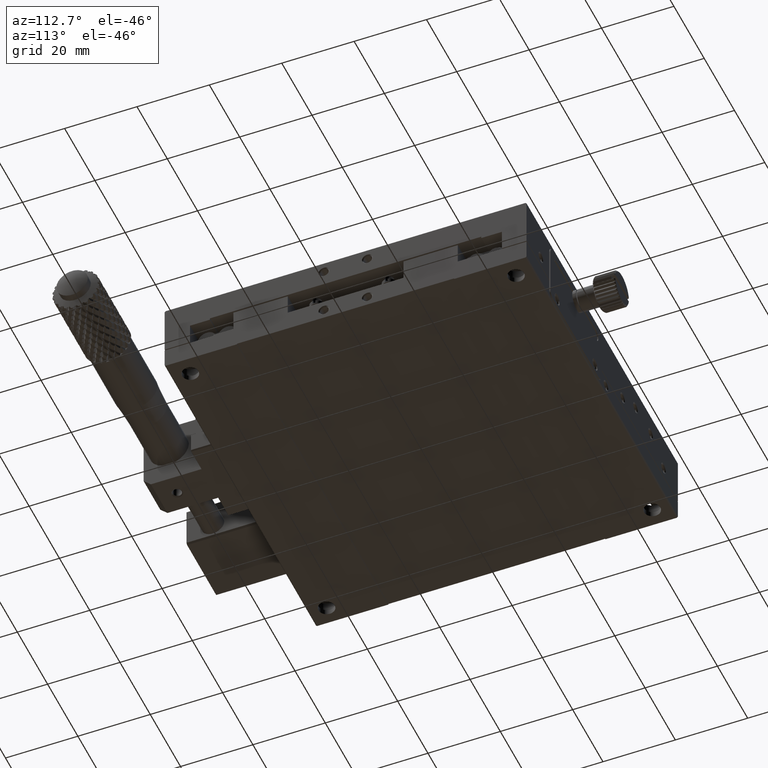
[diagram: clean part render]
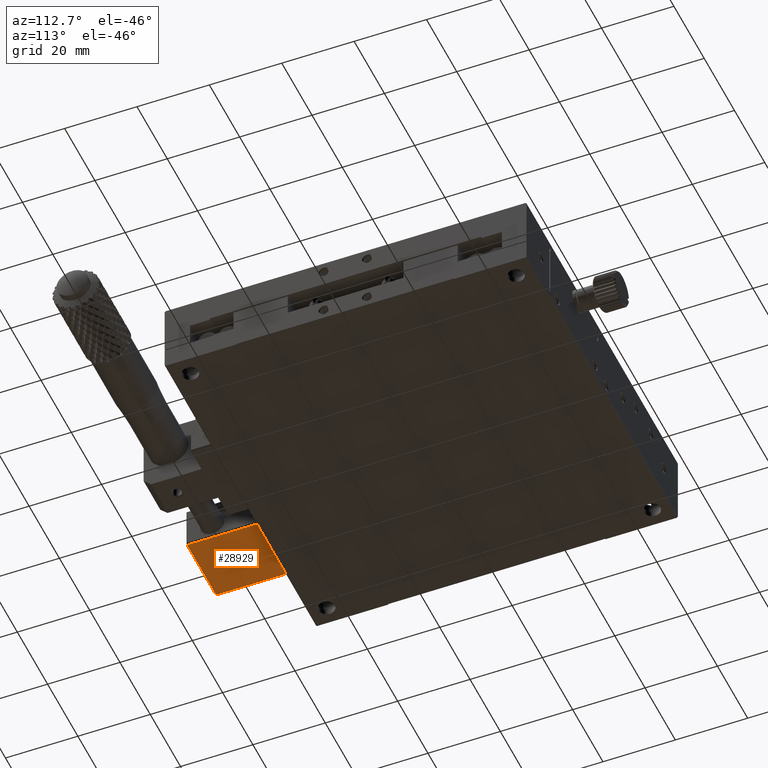
[diagram: same view with one face highlighted and labeled with its STEP entity id]
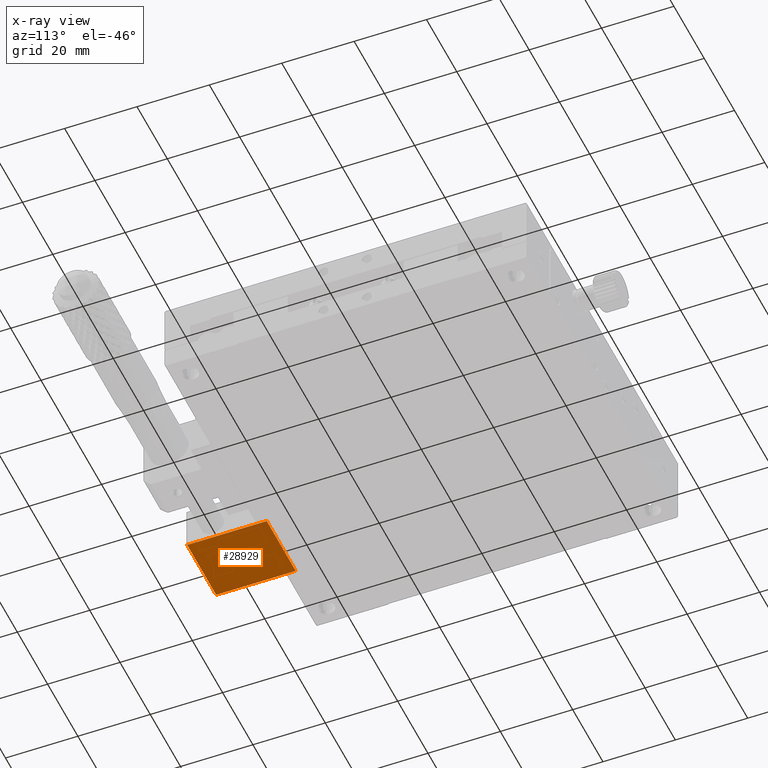
[diagram: x-ray of the same camera — body ghosted, the highlighted face saturated]
A machine part, auxiliary view. The second image highlights one B-rep face of the part: STEP entity #28929.
The next image is the same camera in x-ray: the body ghosted, the highlighted face saturated — about 0% of this face is hidden behind the body in this view.
In plain terms, the highlighted planar face has unit normal (0, 0, 1).
Its self-contained STEP definition (entity closure, byte-faithful):
#3992 = DIRECTION ( 'NONE',  ( 0.000000000000000000, 0.000000000000000000, 1.000000000000000000 ) ) ;
#4460 = VECTOR ( 'NONE', #27889, 1000.000000000000000 ) ;
#5119 = VECTOR ( 'NONE', #30119, 1000.000000000000000 ) ;
#6159 = EDGE_CURVE ( 'NONE', #68955, #8788, #74245, .T. ) ;
#7357 = VECTOR ( 'NONE', #65576, 1000.000000000000000 ) ;
#8025 = DIRECTION ( 'NONE',  ( -1.000000000000000000, 0.000000000000000000, 0.000000000000000000 ) ) ;
#8788 = VERTEX_POINT ( 'NONE', #52653 ) ;
#10695 = LINE ( 'NONE', #16044, #4460 ) ;
#11362 = CARTESIAN_POINT ( 'NONE',  ( -17.42000000000000526, -72.00000000000000000, 7.500000000000000000 ) ) ;
#15738 = ORIENTED_EDGE ( 'NONE', *, *, #25850, .F. ) ;
#16044 = CARTESIAN_POINT ( 'NONE',  ( -36.57999999999999829, -72.00000000000000000, 7.500000000000000000 ) ) ;
#22802 = DIRECTION ( 'NONE',  ( -1.000000000000000000, -0.000000000000000000, 0.000000000000000000 ) ) ;
#25827 = CARTESIAN_POINT ( 'NONE',  ( -36.57999999999999829, -72.00000000000000000, 7.500000000000000000 ) ) ;
#25850 = EDGE_CURVE ( 'NONE', #8788, #34277, #32526, .T. ) ;
#27889 = DIRECTION ( 'NONE',  ( 0.000000000000000000, -1.000000000000000000, 0.000000000000000000 ) ) ;
#27976 = ORIENTED_EDGE ( 'NONE', *, *, #70537, .F. ) ;
#28929 = ADVANCED_FACE ( 'NONE', ( #59920 ), #78756, .F. ) ;
#30119 = DIRECTION ( 'NONE',  ( -0.000000000000000000, 1.000000000000000000, -0.000000000000000000 ) ) ;
#30610 = VECTOR ( 'NONE', #8025, 1000.000000000000000 ) ;
#31443 = EDGE_CURVE ( 'NONE', #46562, #68955, #33734, .T. ) ;
#32526 = LINE ( 'NONE', #57828, #30610 ) ;
#33734 = LINE ( 'NONE', #71305, #7357 ) ;
#34277 = VERTEX_POINT ( 'NONE', #39972 ) ;
#39873 = EDGE_LOOP ( 'NONE', ( #48335, #54854, #27976, #15738 ) ) ;
#39972 = CARTESIAN_POINT ( 'NONE',  ( -36.57999999999999829, -50.00000000000000000, 7.500000000000000000 ) ) ;
#46562 = VERTEX_POINT ( 'NONE', #25827 ) ;
#48335 = ORIENTED_EDGE ( 'NONE', *, *, #6159, .F. ) ;
#49071 = AXIS2_PLACEMENT_3D ( 'NONE', #61127, #3992, #22802 ) ;
#52653 = CARTESIAN_POINT ( 'NONE',  ( -17.42000000000000526, -50.00000000000000000, 7.500000000000000000 ) ) ;
#54854 = ORIENTED_EDGE ( 'NONE', *, *, #31443, .F. ) ;
#56380 = CARTESIAN_POINT ( 'NONE',  ( -17.42000000000000526, -72.00000000000000000, 7.500000000000000000 ) ) ;
#57828 = CARTESIAN_POINT ( 'NONE',  ( -50.00000000000000000, -50.00000000000000000, 7.500000000000000000 ) ) ;
#59920 = FACE_OUTER_BOUND ( 'NONE', #39873, .T. ) ;
#61127 = CARTESIAN_POINT ( 'NONE',  ( -36.57999999999999829, -72.00000000000000000, 7.500000000000000000 ) ) ;
#65576 = DIRECTION ( 'NONE',  ( 1.000000000000000000, 0.000000000000000000, -0.000000000000000000 ) ) ;
#68955 = VERTEX_POINT ( 'NONE', #56380 ) ;
#70537 = EDGE_CURVE ( 'NONE', #34277, #46562, #10695, .T. ) ;
#71305 = CARTESIAN_POINT ( 'NONE',  ( -36.57999999999999829, -72.00000000000000000, 7.500000000000000000 ) ) ;
#74245 = LINE ( 'NONE', #11362, #5119 ) ;
#78756 = PLANE ( 'NONE',  #49071 ) ;